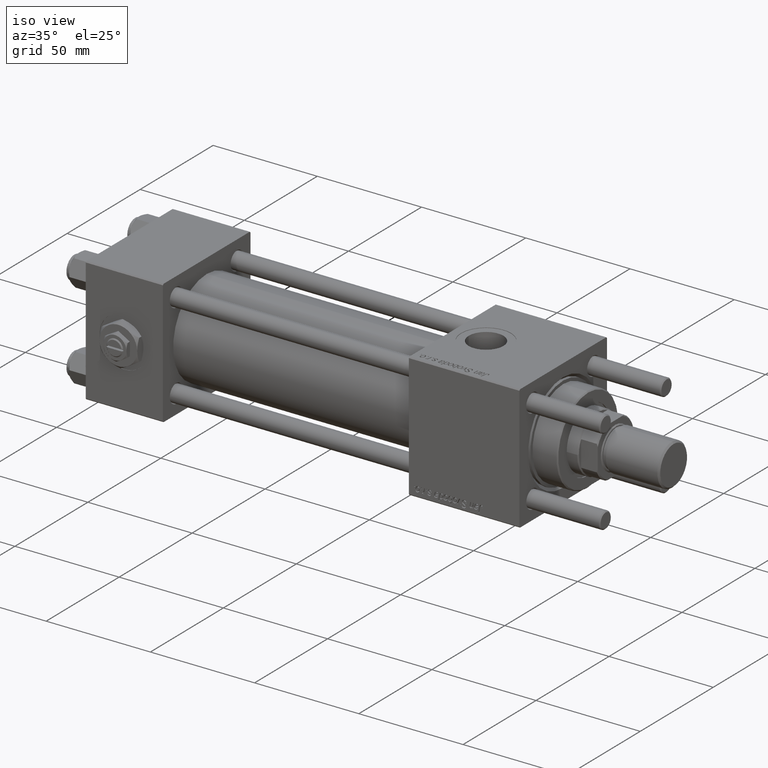
[diagram: clean part render]
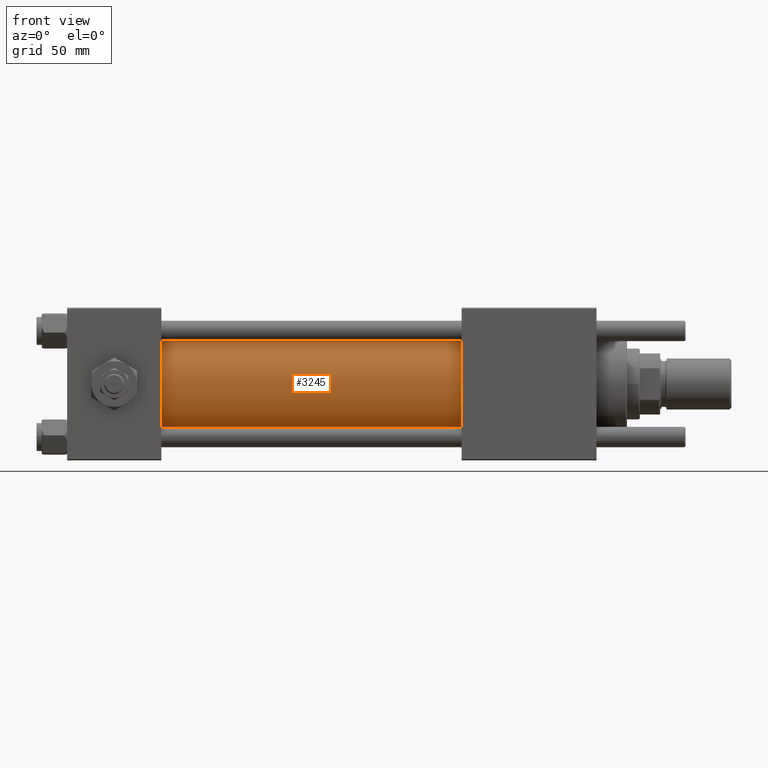
[diagram: tour spotlight — one face highlighted and labeled with its STEP entity id]
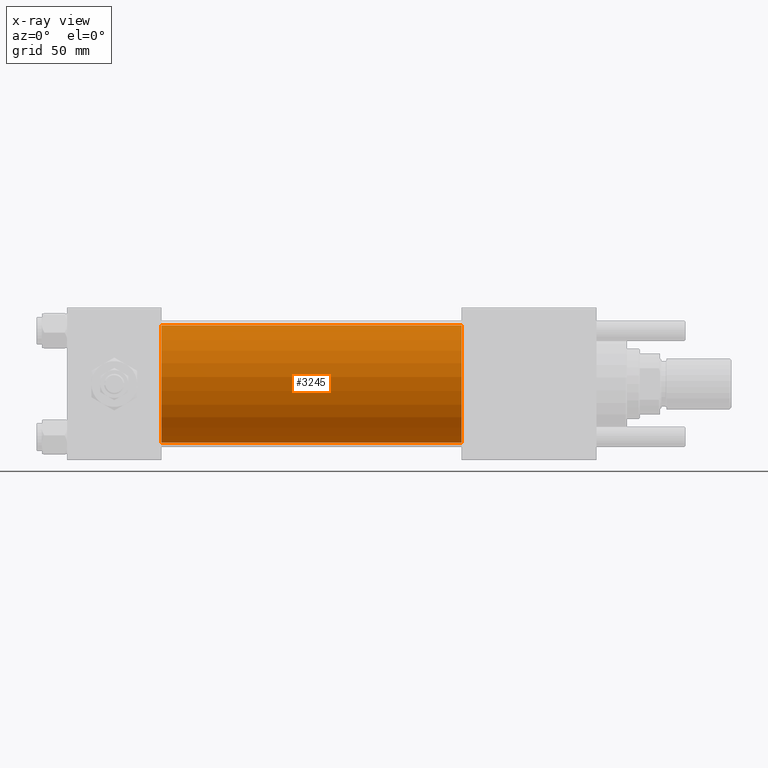
[diagram: x-ray of the same camera — body ghosted, this tour face saturated]
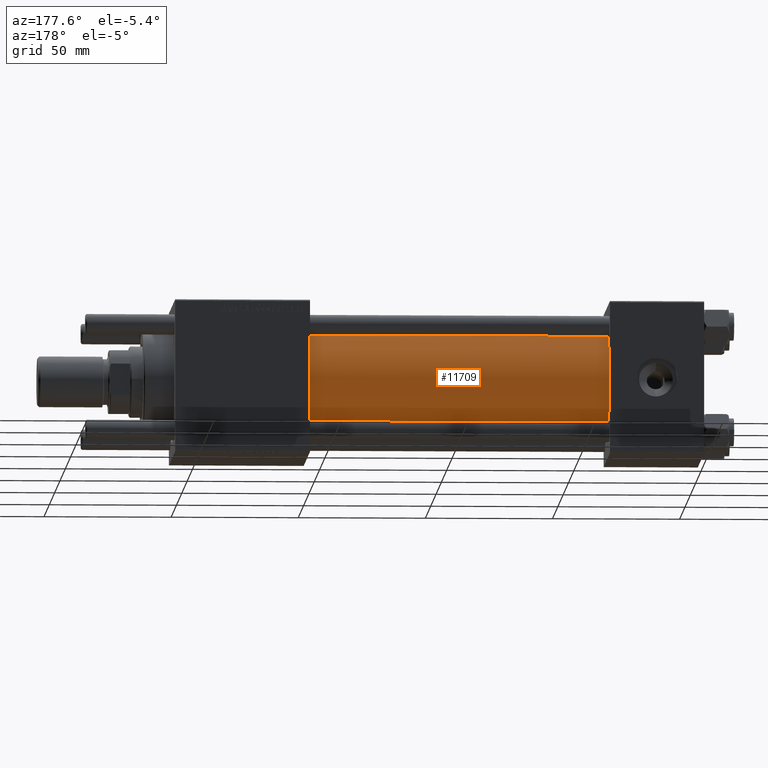
[diagram: tour spotlight — one face highlighted and labeled with its STEP entity id]
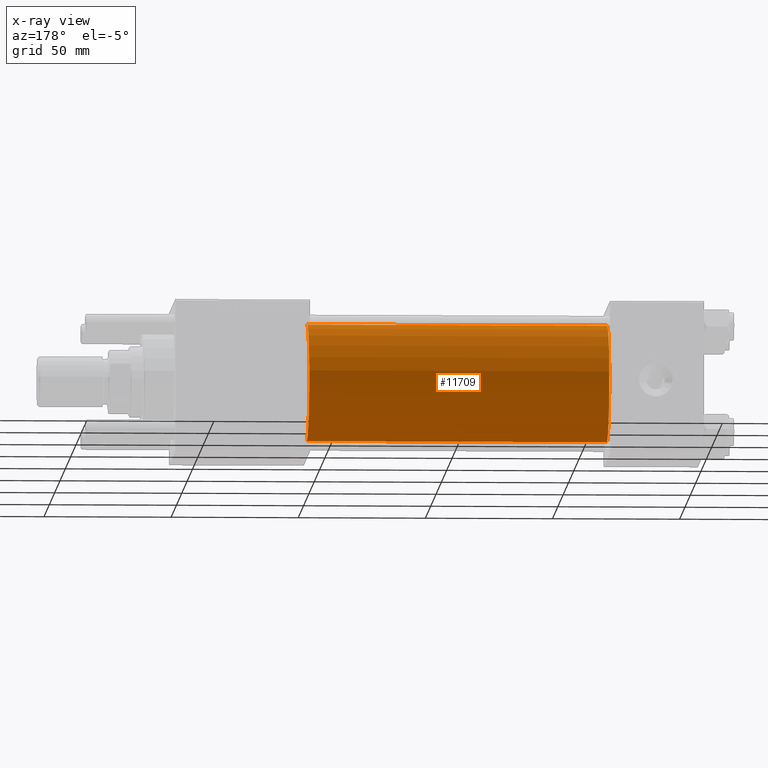
[diagram: x-ray of the same camera — body ghosted, this tour face saturated]
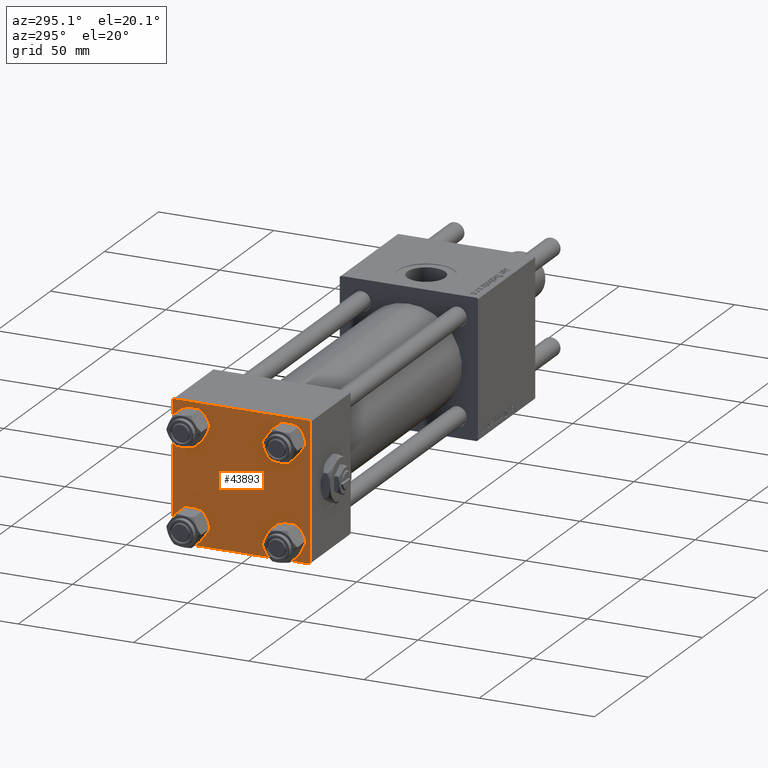
[diagram: tour spotlight — one face highlighted and labeled with its STEP entity id]
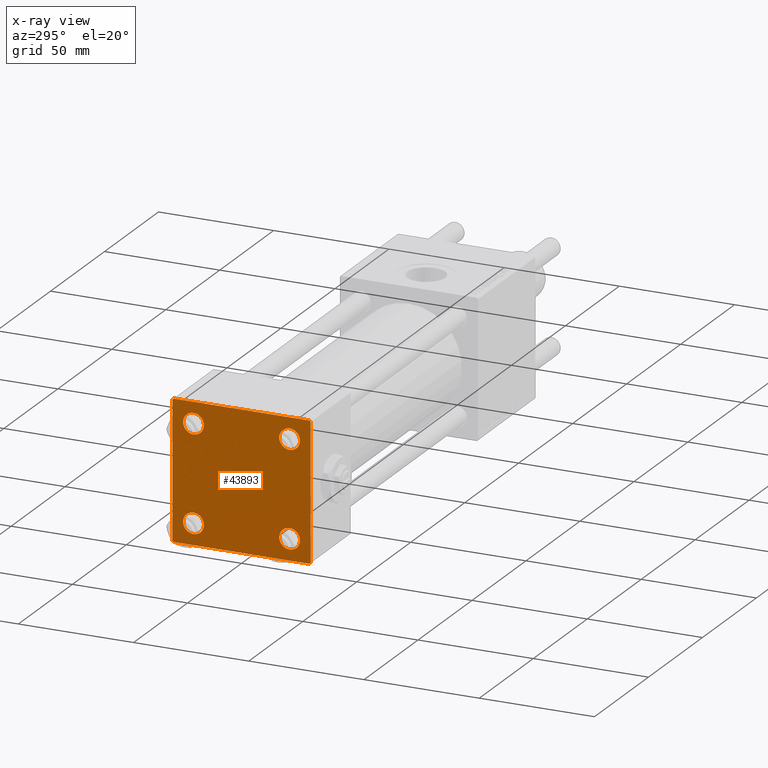
[diagram: x-ray of the same camera — body ghosted, this tour face saturated]
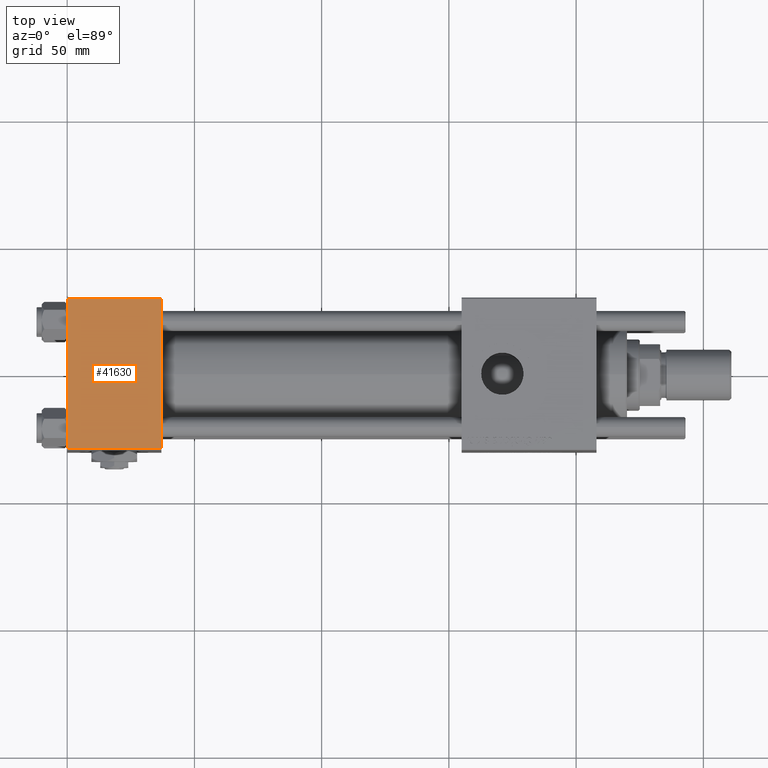
[diagram: tour spotlight — one face highlighted and labeled with its STEP entity id]
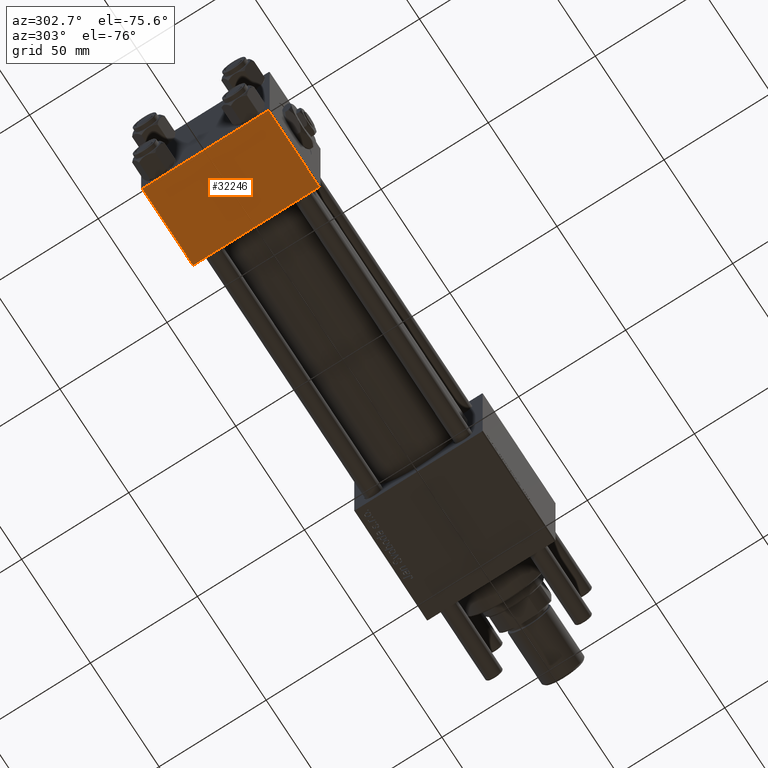
[diagram: tour spotlight — one face highlighted and labeled with its STEP entity id]
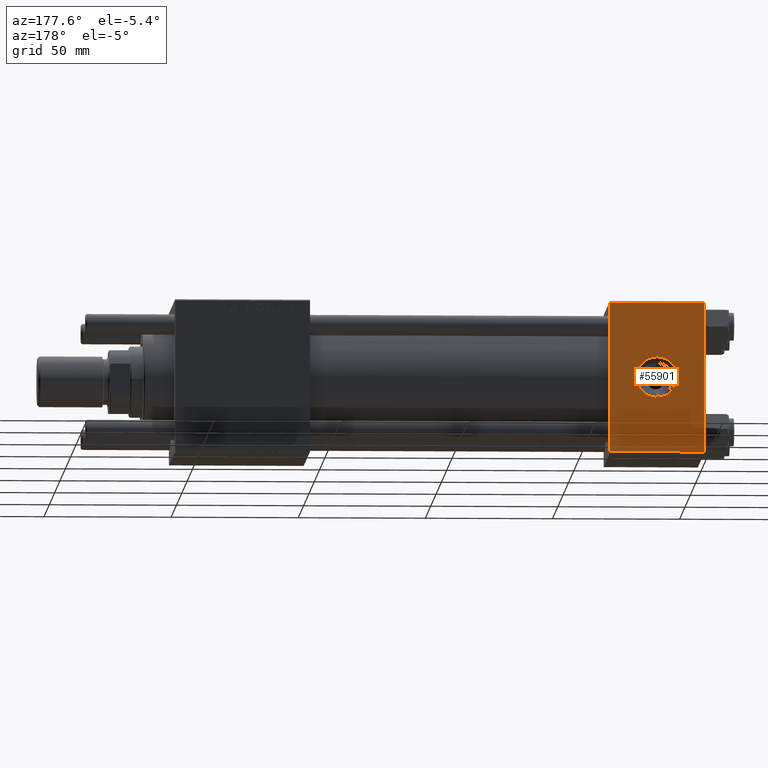
[diagram: tour spotlight — one face highlighted and labeled with its STEP entity id]
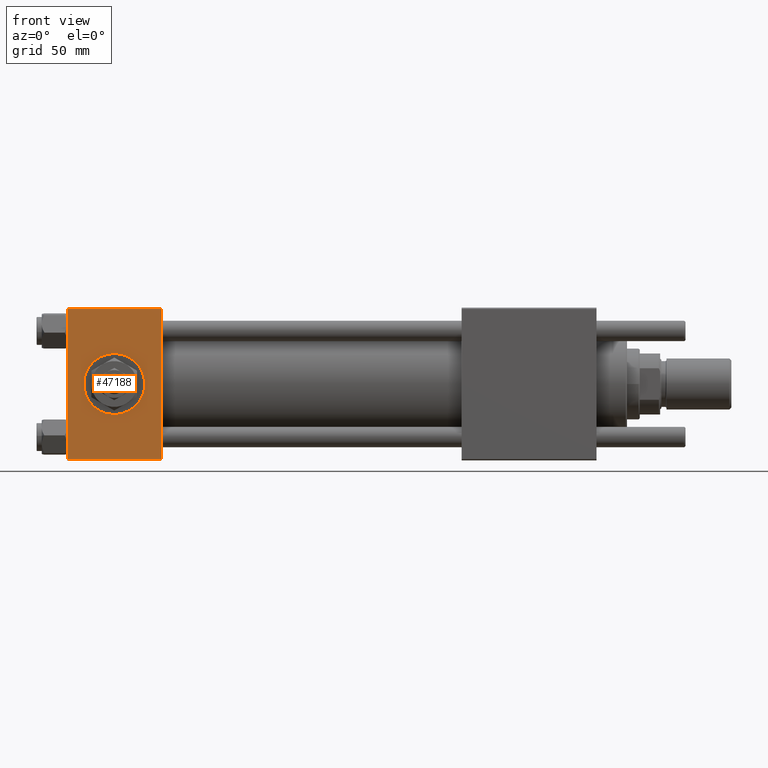
[diagram: tour spotlight — one face highlighted and labeled with its STEP entity id]
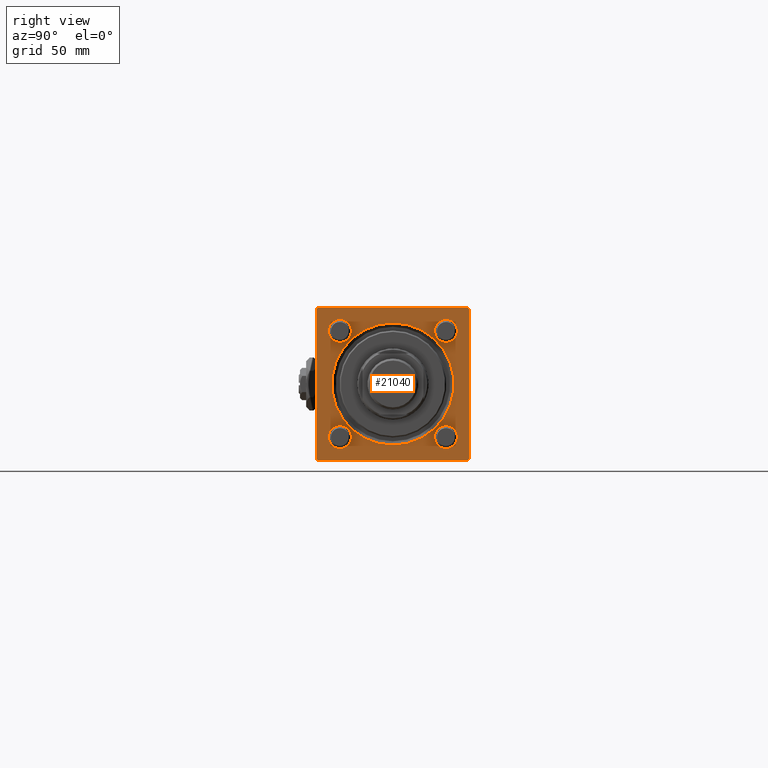
[diagram: tour spotlight — one face highlighted and labeled with its STEP entity id]
A machine part: a face-by-face anatomy tour. The part has 1226 B-rep faces; the first image is the clean iso view, then the 8 largest visible faces are spotlighted one at a time (largest first), each with its STEP entity span.

Face 1 — front view, entity #3245. An x-ray twin of the same camera follows (body ghosted, this face saturated) — the face is partly hidden behind the body. In plain terms, the highlighted cylindrical surface (partial cylindrical patch) has radius 23 mm, axis along (-1, -0, -0).
Definition (entity closure, byte-faithful):
#41 = CARTESIAN_POINT ( 'NONE',  ( 37.00000000000000711, -2.602085213965210642E-15, 0.000000000000000000 ) ) ;
#670 = EDGE_CURVE ( 'NONE', #18494, #18833, #3389, .T. ) ;
#1875 = EDGE_CURVE ( 'NONE', #21756, #31566, #30127, .T. ) ;
#1958 = VECTOR ( 'NONE', #48756, 1000.000000000000000 ) ;
#2983 = DIRECTION ( 'NONE',  ( 1.000000000000000000, 0.000000000000000000, 0.000000000000000000 ) ) ;
#3245 = ADVANCED_FACE ( 'NONE', ( #46354 ), #42179, .T. ) ;
#3389 = CIRCLE ( 'NONE', #35780, 23.00000000000000000 ) ;
#3931 = DIRECTION ( 'NONE',  ( 1.000000000000000000, -0.000000000000000000, 0.000000000000000000 ) ) ;
#4644 = VECTOR ( 'NONE', #49168, 1000.000000000000000 ) ;
#4718 = CARTESIAN_POINT ( 'NONE',  ( 37.00000000000000711, 2.146024240737016609E-16, -23.00000000000000000 ) ) ;
#14888 = AXIS2_PLACEMENT_3D ( 'NONE', #38805, #2983, #34897 ) ;
#15615 = DIRECTION ( 'NONE',  ( -1.000000000000000000, -0.000000000000000000, -0.000000000000000000 ) ) ;
#16081 = CARTESIAN_POINT ( 'NONE',  ( 155.0000000000000000, 2.146024240737016609E-16, -23.00000000000000000 ) ) ;
#18494 = VERTEX_POINT ( 'NONE', #52054 ) ;
#18534 = EDGE_CURVE ( 'NONE', #21756, #18494, #35020, .T. ) ;
#18833 = VERTEX_POINT ( 'NONE', #4718 ) ;
#20592 = ORIENTED_EDGE ( 'NONE', *, *, #44179, .F. ) ;
#21756 = VERTEX_POINT ( 'NONE', #23615 ) ;
#23615 = CARTESIAN_POINT ( 'NONE',  ( 155.0000000000000000, -2.602085213965210642E-15, 23.00000000000000000 ) ) ;
#23999 = DIRECTION ( 'NONE',  ( 0.000000000000000000, 0.000000000000000000, 1.000000000000000000 ) ) ;
#28528 = ORIENTED_EDGE ( 'NONE', *, *, #1875, .F. ) ;
#29696 = CARTESIAN_POINT ( 'NONE',  ( 155.0000000000000000, -2.602085213965210642E-15, 23.00000000000000000 ) ) ;
#30127 = CIRCLE ( 'NONE', #14888, 23.00000000000000000 ) ;
#31497 = EDGE_LOOP ( 'NONE', ( #20592, #28528, #40479, #43588 ) ) ;
#31566 = VERTEX_POINT ( 'NONE', #16081 ) ;
#34897 = DIRECTION ( 'NONE',  ( 0.000000000000000000, 0.000000000000000000, -1.000000000000000000 ) ) ;
#35020 = LINE ( 'NONE', #29696, #1958 ) ;
#35780 = AXIS2_PLACEMENT_3D ( 'NONE', #41, #3931, #45401 ) ;
#38805 = CARTESIAN_POINT ( 'NONE',  ( 155.0000000000000000, -2.602085213965210642E-15, 0.000000000000000000 ) ) ;
#40479 = ORIENTED_EDGE ( 'NONE', *, *, #18534, .T. ) ;
#42179 = CYLINDRICAL_SURFACE ( 'NONE', #54950, 23.00000000000000000 ) ;
#43588 = ORIENTED_EDGE ( 'NONE', *, *, #670, .T. ) ;
#44115 = LINE ( 'NONE', #57839, #4644 ) ;
#44179 = EDGE_CURVE ( 'NONE', #31566, #18833, #44115, .T. ) ;
#45401 = DIRECTION ( 'NONE',  ( 0.000000000000000000, 0.000000000000000000, 1.000000000000000000 ) ) ;
#46354 = FACE_OUTER_BOUND ( 'NONE', #31497, .T. ) ;
#48756 = DIRECTION ( 'NONE',  ( -1.000000000000000000, -0.000000000000000000, -0.000000000000000000 ) ) ;
#49168 = DIRECTION ( 'NONE',  ( -1.000000000000000000, -0.000000000000000000, -0.000000000000000000 ) ) ;
#50820 = CARTESIAN_POINT ( 'NONE',  ( 155.0000000000000000, -2.602085213965210642E-15, 0.000000000000000000 ) ) ;
#52054 = CARTESIAN_POINT ( 'NONE',  ( 37.00000000000000711, -2.602085213965210642E-15, 23.00000000000000000 ) ) ;
#54950 = AXIS2_PLACEMENT_3D ( 'NONE', #50820, #15615, #23999 ) ;
#57839 = CARTESIAN_POINT ( 'NONE',  ( 155.0000000000000000, 2.146024240737016609E-16, -23.00000000000000000 ) ) ;

Face 2 — auxiliary view, entity #11709. An x-ray twin of the same camera follows (body ghosted, this face saturated) — the face is partly hidden behind the body. In plain terms, the highlighted cylindrical surface (partial cylindrical patch) has radius 23 mm, axis along (-1, -0, -0).
Definition (entity closure, byte-faithful):
#970 = DIRECTION ( 'NONE',  ( 0.000000000000000000, 0.000000000000000000, 1.000000000000000000 ) ) ;
#1958 = VECTOR ( 'NONE', #48756, 1000.000000000000000 ) ;
#2816 = CYLINDRICAL_SURFACE ( 'NONE', #55058, 23.00000000000000000 ) ;
#4644 = VECTOR ( 'NONE', #49168, 1000.000000000000000 ) ;
#4718 = CARTESIAN_POINT ( 'NONE',  ( 37.00000000000000711, 2.146024240737016609E-16, -23.00000000000000000 ) ) ;
#5298 = AXIS2_PLACEMENT_3D ( 'NONE', #41849, #24263, #970 ) ;
#11709 = ADVANCED_FACE ( 'NONE', ( #33579 ), #2816, .T. ) ;
#13396 = ORIENTED_EDGE ( 'NONE', *, *, #27292, .T. ) ;
#16081 = CARTESIAN_POINT ( 'NONE',  ( 155.0000000000000000, 2.146024240737016609E-16, -23.00000000000000000 ) ) ;
#18494 = VERTEX_POINT ( 'NONE', #52054 ) ;
#18534 = EDGE_CURVE ( 'NONE', #21756, #18494, #35020, .T. ) ;
#18833 = VERTEX_POINT ( 'NONE', #4718 ) ;
#19203 = EDGE_CURVE ( 'NONE', #31566, #21756, #30541, .T. ) ;
#21756 = VERTEX_POINT ( 'NONE', #23615 ) ;
#23180 = CARTESIAN_POINT ( 'NONE',  ( 155.0000000000000000, -2.602085213965210642E-15, 0.000000000000000000 ) ) ;
#23615 = CARTESIAN_POINT ( 'NONE',  ( 155.0000000000000000, -2.602085213965210642E-15, 23.00000000000000000 ) ) ;
#24263 = DIRECTION ( 'NONE',  ( 1.000000000000000000, -0.000000000000000000, 0.000000000000000000 ) ) ;
#27292 = EDGE_CURVE ( 'NONE', #18833, #18494, #52973, .T. ) ;
#28835 = DIRECTION ( 'NONE',  ( 0.000000000000000000, 0.000000000000000000, 1.000000000000000000 ) ) ;
#29696 = CARTESIAN_POINT ( 'NONE',  ( 155.0000000000000000, -2.602085213965210642E-15, 23.00000000000000000 ) ) ;
#30541 = CIRCLE ( 'NONE', #45785, 23.00000000000000000 ) ;
#31566 = VERTEX_POINT ( 'NONE', #16081 ) ;
#32124 = ORIENTED_EDGE ( 'NONE', *, *, #19203, .F. ) ;
#33579 = FACE_OUTER_BOUND ( 'NONE', #44246, .T. ) ;
#35020 = LINE ( 'NONE', #29696, #1958 ) ;
#38359 = CARTESIAN_POINT ( 'NONE',  ( 155.0000000000000000, -2.602085213965210642E-15, 0.000000000000000000 ) ) ;
#41356 = DIRECTION ( 'NONE',  ( 0.000000000000000000, 0.000000000000000000, -1.000000000000000000 ) ) ;
#41849 = CARTESIAN_POINT ( 'NONE',  ( 37.00000000000000711, -2.602085213965210642E-15, 0.000000000000000000 ) ) ;
#43170 = ORIENTED_EDGE ( 'NONE', *, *, #44179, .T. ) ;
#44115 = LINE ( 'NONE', #57839, #4644 ) ;
#44179 = EDGE_CURVE ( 'NONE', #31566, #18833, #44115, .T. ) ;
#44246 = EDGE_LOOP ( 'NONE', ( #32124, #43170, #13396, #52179 ) ) ;
#45785 = AXIS2_PLACEMENT_3D ( 'NONE', #23180, #58977, #41356 ) ;
#48756 = DIRECTION ( 'NONE',  ( -1.000000000000000000, -0.000000000000000000, -0.000000000000000000 ) ) ;
#49168 = DIRECTION ( 'NONE',  ( -1.000000000000000000, -0.000000000000000000, -0.000000000000000000 ) ) ;
#52054 = CARTESIAN_POINT ( 'NONE',  ( 37.00000000000000711, -2.602085213965210642E-15, 23.00000000000000000 ) ) ;
#52179 = ORIENTED_EDGE ( 'NONE', *, *, #18534, .F. ) ;
#52973 = CIRCLE ( 'NONE', #5298, 23.00000000000000000 ) ;
#55058 = AXIS2_PLACEMENT_3D ( 'NONE', #38359, #56546, #28835 ) ;
#56546 = DIRECTION ( 'NONE',  ( -1.000000000000000000, -0.000000000000000000, -0.000000000000000000 ) ) ;
#57839 = CARTESIAN_POINT ( 'NONE',  ( 155.0000000000000000, 2.146024240737016609E-16, -23.00000000000000000 ) ) ;
#58977 = DIRECTION ( 'NONE',  ( 1.000000000000000000, 0.000000000000000000, 0.000000000000000000 ) ) ;

Face 3 — auxiliary view, entity #43893. An x-ray twin of the same camera follows (body ghosted, this face saturated) — the face is partly hidden behind the body. In plain terms, the highlighted planar face has unit normal (-1, 0, 0).
Definition (entity closure, byte-faithful):
#579 = FACE_BOUND ( 'NONE', #52391, .T. ) ;
#883 = FACE_BOUND ( 'NONE', #34056, .T. ) ;
#1566 = CARTESIAN_POINT ( 'NONE',  ( 0.000000000000000000, -29.75000000000001066, -29.75000000000001066 ) ) ;
#1578 = CIRCLE ( 'NONE', #22557, 4.500000000000017764 ) ;
#1859 = LINE ( 'NONE', #1566, #46630 ) ;
#1980 = CIRCLE ( 'NONE', #33420, 4.500000000000017764 ) ;
#2153 = CARTESIAN_POINT ( 'NONE',  ( 0.000000000000000000, -30.00000000000000000, 29.99999999999999289 ) ) ;
#2197 = CARTESIAN_POINT ( 'NONE',  ( 0.000000000000000000, 20.84999999999999787, -20.85000000000000142 ) ) ;
#2347 = CARTESIAN_POINT ( 'NONE',  ( 0.000000000000000000, 29.99999999999999289, -30.00000000000000000 ) ) ;
#2631 = EDGE_CURVE ( 'NONE', #16757, #19684, #1578, .T. ) ;
#2746 = AXIS2_PLACEMENT_3D ( 'NONE', #20626, #44156, #56425 ) ;
#2843 = LINE ( 'NONE', #3416, #33034 ) ;
#2866 = VERTEX_POINT ( 'NONE', #14319 ) ;
#3007 = ORIENTED_EDGE ( 'NONE', *, *, #44032, .T. ) ;
#3229 = VERTEX_POINT ( 'NONE', #18914 ) ;
#3416 = CARTESIAN_POINT ( 'NONE',  ( -0.000000000000000000, -29.74999999999999645, 29.74999999999999645 ) ) ;
#3471 = CARTESIAN_POINT ( 'NONE',  ( 0.000000000000000000, -20.84999999999999076, -20.85000000000000497 ) ) ;
#3686 = VECTOR ( 'NONE', #36668, 1000.000000000000000 ) ;
#3938 = AXIS2_PLACEMENT_3D ( 'NONE', #31522, #49113, #22581 ) ;
#5210 = LINE ( 'NONE', #10295, #20859 ) ;
#5758 = DIRECTION ( 'NONE',  ( 0.000000000000000000, -0.7071067811865474617, 0.7071067811865474617 ) ) ;
#5789 = CARTESIAN_POINT ( 'NONE',  ( 0.000000000000000000, -20.84999999999999076, 25.35000000000002274 ) ) ;
#6134 = VERTEX_POINT ( 'NONE', #58178 ) ;
#7653 = VECTOR ( 'NONE', #42943, 1000.000000000000000 ) ;
#8218 = ORIENTED_EDGE ( 'NONE', *, *, #56786, .T. ) ;
#8486 = VECTOR ( 'NONE', #15596, 1000.000000000000000 ) ;
#8750 = VERTEX_POINT ( 'NONE', #16900 ) ;
#8931 = EDGE_CURVE ( 'NONE', #10440, #35327, #5210, .T. ) ;
#9353 = EDGE_CURVE ( 'NONE', #44205, #2866, #29320, .T. ) ;
#10295 = CARTESIAN_POINT ( 'NONE',  ( 0.000000000000000000, 29.74999999999999645, 29.74999999999999645 ) ) ;
#10366 = DIRECTION ( 'NONE',  ( 0.000000000000000000, 0.000000000000000000, -1.000000000000000000 ) ) ;
#10440 = VERTEX_POINT ( 'NONE', #25008 ) ;
#11220 = ORIENTED_EDGE ( 'NONE', *, *, #45736, .T. ) ;
#11313 = CIRCLE ( 'NONE', #2746, 4.500000000000017764 ) ;
#11770 = VERTEX_POINT ( 'NONE', #54126 ) ;
#11834 = VECTOR ( 'NONE', #28233, 999.9999999999998863 ) ;
#13729 = DIRECTION ( 'NONE',  ( 1.000000000000000000, -0.000000000000000000, 0.000000000000000000 ) ) ;
#13804 = VERTEX_POINT ( 'NONE', #49001 ) ;
#14319 = CARTESIAN_POINT ( 'NONE',  ( 0.000000000000000000, -30.00000000000000000, -29.50000000000001776 ) ) ;
#14418 = CIRCLE ( 'NONE', #38219, 4.500000000000017764 ) ;
#14855 = LINE ( 'NONE', #33031, #17163 ) ;
#14858 = ORIENTED_EDGE ( 'NONE', *, *, #33469, .T. ) ;
#15258 = DIRECTION ( 'NONE',  ( 1.000000000000000000, -0.000000000000000000, 0.000000000000000000 ) ) ;
#15596 = DIRECTION ( 'NONE',  ( 0.000000000000000000, 0.000000000000000000, -1.000000000000000000 ) ) ;
#15742 = VERTEX_POINT ( 'NONE', #35301 ) ;
#16757 = VERTEX_POINT ( 'NONE', #18313 ) ;
#16900 = CARTESIAN_POINT ( 'NONE',  ( 0.000000000000000000, -29.50000000000000000, -30.00000000000000711 ) ) ;
#17163 = VECTOR ( 'NONE', #10366, 1000.000000000000000 ) ;
#18313 = CARTESIAN_POINT ( 'NONE',  ( 0.000000000000000000, -20.84999999999999076, -25.35000000000002274 ) ) ;
#18504 = ORIENTED_EDGE ( 'NONE', *, *, #58374, .F. ) ;
#18914 = CARTESIAN_POINT ( 'NONE',  ( 0.000000000000000000, 20.84999999999999787, -25.35000000000001918 ) ) ;
#19684 = VERTEX_POINT ( 'NONE', #46101 ) ;
#19872 = AXIS2_PLACEMENT_3D ( 'NONE', #3471, #35704, #21719 ) ;
#20581 = EDGE_CURVE ( 'NONE', #6134, #15742, #14418, .T. ) ;
#20626 = CARTESIAN_POINT ( 'NONE',  ( 0.000000000000000000, 20.84999999999999787, 20.85000000000000142 ) ) ;
#20859 = VECTOR ( 'NONE', #23445, 1000.000000000000114 ) ;
#21719 = DIRECTION ( 'NONE',  ( 0.000000000000000000, 0.000000000000000000, 1.000000000000000000 ) ) ;
#22557 = AXIS2_PLACEMENT_3D ( 'NONE', #34027, #42701, #41821 ) ;
#22581 = DIRECTION ( 'NONE',  ( 0.000000000000000000, 0.000000000000000000, 1.000000000000000000 ) ) ;
#22587 = EDGE_CURVE ( 'NONE', #24774, #13804, #22885, .T. ) ;
#22885 = LINE ( 'NONE', #27940, #11834 ) ;
#23286 = DIRECTION ( 'NONE',  ( -1.000000000000000000, 0.000000000000000000, -0.000000000000000000 ) ) ;
#23445 = DIRECTION ( 'NONE',  ( 0.000000000000000000, 0.7071067811865474617, -0.7071067811865474617 ) ) ;
#24108 = CARTESIAN_POINT ( 'NONE',  ( 0.000000000000000000, -30.00000000000000000, 29.49999999999999289 ) ) ;
#24774 = VERTEX_POINT ( 'NONE', #43409 ) ;
#25008 = CARTESIAN_POINT ( 'NONE',  ( 0.000000000000000000, 29.49999999999999289, 30.00000000000000000 ) ) ;
#25483 = ORIENTED_EDGE ( 'NONE', *, *, #52483, .T. ) ;
#26137 = ORIENTED_EDGE ( 'NONE', *, *, #43304, .T. ) ;
#26413 = DIRECTION ( 'NONE',  ( -0.000000000000000000, 0.7071067811865474617, 0.7071067811865474617 ) ) ;
#27394 = ORIENTED_EDGE ( 'NONE', *, *, #20581, .T. ) ;
#27772 = DIRECTION ( 'NONE',  ( -0.000000000000000000, 0.000000000000000000, 1.000000000000000000 ) ) ;
#27918 = ORIENTED_EDGE ( 'NONE', *, *, #41215, .T. ) ;
#27940 = CARTESIAN_POINT ( 'NONE',  ( 0.000000000000000000, 29.74999999999957723, -29.75000000000040501 ) ) ;
#28233 = DIRECTION ( 'NONE',  ( -0.000000000000000000, -0.7071067811865574537, -0.7071067811865376918 ) ) ;
#28482 = CIRCLE ( 'NONE', #19872, 4.500000000000017764 ) ;
#28691 = DIRECTION ( 'NONE',  ( 0.000000000000000000, 0.000000000000000000, 1.000000000000000000 ) ) ;
#29021 = VERTEX_POINT ( 'NONE', #36289 ) ;
#29320 = LINE ( 'NONE', #2153, #8486 ) ;
#29521 = AXIS2_PLACEMENT_3D ( 'NONE', #40578, #13729, #58776 ) ;
#31522 = CARTESIAN_POINT ( 'NONE',  ( 0.000000000000000000, -20.84999999999999076, 20.85000000000000497 ) ) ;
#32113 = VERTEX_POINT ( 'NONE', #51086 ) ;
#32772 = CARTESIAN_POINT ( 'NONE',  ( 0.000000000000000000, 29.99999999999999289, 30.00000000000000000 ) ) ;
#33031 = CARTESIAN_POINT ( 'NONE',  ( 0.000000000000000000, 29.99999999999999289, 30.00000000000000000 ) ) ;
#33034 = VECTOR ( 'NONE', #26413, 1000.000000000000114 ) ;
#33078 = LINE ( 'NONE', #32772, #3686 ) ;
#33407 = PLANE ( 'NONE',  #49559 ) ;
#33420 = AXIS2_PLACEMENT_3D ( 'NONE', #2197, #57389, #56508 ) ;
#33469 = EDGE_CURVE ( 'NONE', #44205, #11770, #2843, .T. ) ;
#34027 = CARTESIAN_POINT ( 'NONE',  ( 0.000000000000000000, -20.84999999999999076, -20.85000000000000497 ) ) ;
#34056 = EDGE_LOOP ( 'NONE', ( #27394, #58711 ) ) ;
#34776 = ORIENTED_EDGE ( 'NONE', *, *, #22587, .T. ) ;
#35301 = CARTESIAN_POINT ( 'NONE',  ( 0.000000000000000000, 20.84999999999999787, 16.34999999999998366 ) ) ;
#35327 = VERTEX_POINT ( 'NONE', #37230 ) ;
#35704 = DIRECTION ( 'NONE',  ( 1.000000000000000000, -0.000000000000000000, 0.000000000000000000 ) ) ;
#36145 = ORIENTED_EDGE ( 'NONE', *, *, #8931, .T. ) ;
#36289 = CARTESIAN_POINT ( 'NONE',  ( 0.000000000000000000, 20.84999999999999787, -16.34999999999998366 ) ) ;
#36668 = DIRECTION ( 'NONE',  ( 0.000000000000000000, -1.000000000000000000, -1.156482317317871725E-16 ) ) ;
#37230 = CARTESIAN_POINT ( 'NONE',  ( 0.000000000000000000, 29.99999999999999289, 29.50000000000000000 ) ) ;
#37887 = FACE_BOUND ( 'NONE', #51891, .T. ) ;
#38219 = AXIS2_PLACEMENT_3D ( 'NONE', #45815, #42518, #55945 ) ;
#38696 = ORIENTED_EDGE ( 'NONE', *, *, #2631, .T. ) ;
#40149 = EDGE_CURVE ( 'NONE', #15742, #6134, #11313, .T. ) ;
#40154 = CIRCLE ( 'NONE', #3938, 4.500000000000017764 ) ;
#40578 = CARTESIAN_POINT ( 'NONE',  ( 0.000000000000000000, 20.84999999999999787, -20.85000000000000142 ) ) ;
#41215 = EDGE_CURVE ( 'NONE', #3229, #29021, #49472, .T. ) ;
#41821 = DIRECTION ( 'NONE',  ( 0.000000000000000000, 0.000000000000000000, 1.000000000000000000 ) ) ;
#42385 = CARTESIAN_POINT ( 'NONE',  ( 0.000000000000000000, -20.84999999999999076, 20.85000000000000497 ) ) ;
#42518 = DIRECTION ( 'NONE',  ( 1.000000000000000000, -0.000000000000000000, 0.000000000000000000 ) ) ;
#42701 = DIRECTION ( 'NONE',  ( 1.000000000000000000, -0.000000000000000000, 0.000000000000000000 ) ) ;
#42943 = DIRECTION ( 'NONE',  ( 0.000000000000000000, -1.000000000000000000, -1.156482317317871725E-16 ) ) ;
#43223 = LINE ( 'NONE', #2347, #7653 ) ;
#43304 = EDGE_CURVE ( 'NONE', #35327, #24774, #14855, .T. ) ;
#43409 = CARTESIAN_POINT ( 'NONE',  ( 0.000000000000000000, 29.99999999999999289, -29.50000000000000000 ) ) ;
#43893 = ADVANCED_FACE ( 'NONE', ( #579, #54898, #37887, #883, #51306 ), #33407, .T. ) ;
#44032 = EDGE_CURVE ( 'NONE', #13804, #8750, #43223, .T. ) ;
#44093 = ORIENTED_EDGE ( 'NONE', *, *, #56530, .T. ) ;
#44156 = DIRECTION ( 'NONE',  ( 1.000000000000000000, -0.000000000000000000, 0.000000000000000000 ) ) ;
#44205 = VERTEX_POINT ( 'NONE', #24108 ) ;
#45574 = CIRCLE ( 'NONE', #51281, 4.500000000000017764 ) ;
#45736 = EDGE_CURVE ( 'NONE', #8750, #2866, #1859, .T. ) ;
#45815 = CARTESIAN_POINT ( 'NONE',  ( 0.000000000000000000, 20.84999999999999787, 20.85000000000000142 ) ) ;
#46101 = CARTESIAN_POINT ( 'NONE',  ( 0.000000000000000000, -20.84999999999999076, -16.34999999999998721 ) ) ;
#46630 = VECTOR ( 'NONE', #5758, 1000.000000000000114 ) ;
#49001 = CARTESIAN_POINT ( 'NONE',  ( 0.000000000000000000, 29.49999999999997868, -30.00000000000000000 ) ) ;
#49113 = DIRECTION ( 'NONE',  ( 1.000000000000000000, -0.000000000000000000, 0.000000000000000000 ) ) ;
#49174 = EDGE_CURVE ( 'NONE', #29021, #3229, #1980, .T. ) ;
#49472 = CIRCLE ( 'NONE', #29521, 4.500000000000017764 ) ;
#49559 = AXIS2_PLACEMENT_3D ( 'NONE', #50713, #23286, #27772 ) ;
#49689 = ORIENTED_EDGE ( 'NONE', *, *, #49174, .T. ) ;
#49991 = ORIENTED_EDGE ( 'NONE', *, *, #9353, .F. ) ;
#50713 = CARTESIAN_POINT ( 'NONE',  ( 0.000000000000000000, 0.000000000000000000, 0.000000000000000000 ) ) ;
#51086 = CARTESIAN_POINT ( 'NONE',  ( 0.000000000000000000, -20.84999999999999076, 16.34999999999998721 ) ) ;
#51281 = AXIS2_PLACEMENT_3D ( 'NONE', #42385, #15258, #28691 ) ;
#51306 = FACE_OUTER_BOUND ( 'NONE', #55490, .T. ) ;
#51891 = EDGE_LOOP ( 'NONE', ( #49689, #27918 ) ) ;
#52391 = EDGE_LOOP ( 'NONE', ( #25483, #44093 ) ) ;
#52483 = EDGE_CURVE ( 'NONE', #58088, #32113, #40154, .T. ) ;
#54126 = CARTESIAN_POINT ( 'NONE',  ( 0.000000000000000000, -29.49999999999998579, 29.99999999999999289 ) ) ;
#54802 = EDGE_LOOP ( 'NONE', ( #8218, #38696 ) ) ;
#54898 = FACE_BOUND ( 'NONE', #54802, .T. ) ;
#55490 = EDGE_LOOP ( 'NONE', ( #26137, #34776, #3007, #11220, #49991, #14858, #18504, #36145 ) ) ;
#55945 = DIRECTION ( 'NONE',  ( 0.000000000000000000, 0.000000000000000000, 1.000000000000000000 ) ) ;
#56425 = DIRECTION ( 'NONE',  ( 0.000000000000000000, 0.000000000000000000, 1.000000000000000000 ) ) ;
#56508 = DIRECTION ( 'NONE',  ( 0.000000000000000000, 0.000000000000000000, 1.000000000000000000 ) ) ;
#56530 = EDGE_CURVE ( 'NONE', #32113, #58088, #45574, .T. ) ;
#56786 = EDGE_CURVE ( 'NONE', #19684, #16757, #28482, .T. ) ;
#57389 = DIRECTION ( 'NONE',  ( 1.000000000000000000, -0.000000000000000000, 0.000000000000000000 ) ) ;
#58088 = VERTEX_POINT ( 'NONE', #5789 ) ;
#58178 = CARTESIAN_POINT ( 'NONE',  ( 0.000000000000000000, 20.84999999999999787, 25.35000000000001918 ) ) ;
#58374 = EDGE_CURVE ( 'NONE', #10440, #11770, #33078, .T. ) ;
#58711 = ORIENTED_EDGE ( 'NONE', *, *, #40149, .T. ) ;
#58776 = DIRECTION ( 'NONE',  ( 0.000000000000000000, 0.000000000000000000, 1.000000000000000000 ) ) ;

Face 4 — top view, entity #41630. In plain terms, the highlighted planar face has unit normal (0, 0, -1).
Definition (entity closure, byte-faithful):
#2494 = ORIENTED_EDGE ( 'NONE', *, *, #58374, .T. ) ;
#3240 = CARTESIAN_POINT ( 'NONE',  ( 37.00000000000000000, 29.49999999999999289, 30.00000000000000000 ) ) ;
#3686 = VECTOR ( 'NONE', #36668, 1000.000000000000000 ) ;
#3734 = VECTOR ( 'NONE', #10039, 1000.000000000000000 ) ;
#7116 = VERTEX_POINT ( 'NONE', #29502 ) ;
#7232 = EDGE_CURVE ( 'NONE', #46103, #7116, #49138, .T. ) ;
#7566 = AXIS2_PLACEMENT_3D ( 'NONE', #57826, #35140, #40794 ) ;
#8880 = FACE_OUTER_BOUND ( 'NONE', #43744, .T. ) ;
#10039 = DIRECTION ( 'NONE',  ( 1.000000000000000000, 0.000000000000000000, 0.000000000000000000 ) ) ;
#10303 = LINE ( 'NONE', #32374, #46801 ) ;
#10440 = VERTEX_POINT ( 'NONE', #25008 ) ;
#11770 = VERTEX_POINT ( 'NONE', #54126 ) ;
#13941 = CARTESIAN_POINT ( 'NONE',  ( 37.00000000000000000, -29.50000000000000000, 29.99999999999999289 ) ) ;
#19864 = DIRECTION ( 'NONE',  ( -1.000000000000000000, 0.000000000000000000, 0.000000000000000000 ) ) ;
#24766 = ORIENTED_EDGE ( 'NONE', *, *, #51654, .T. ) ;
#25008 = CARTESIAN_POINT ( 'NONE',  ( 0.000000000000000000, 29.49999999999999289, 30.00000000000000000 ) ) ;
#27087 = PLANE ( 'NONE',  #7566 ) ;
#29502 = CARTESIAN_POINT ( 'NONE',  ( 37.00000000000000000, -29.49999999999998579, 29.99999999999999289 ) ) ;
#32374 = CARTESIAN_POINT ( 'NONE',  ( 0.000000000000000000, 29.49999999999999289, 30.00000000000000000 ) ) ;
#32772 = CARTESIAN_POINT ( 'NONE',  ( 0.000000000000000000, 29.99999999999999289, 30.00000000000000000 ) ) ;
#33078 = LINE ( 'NONE', #32772, #3686 ) ;
#35140 = DIRECTION ( 'NONE',  ( 0.000000000000000000, 1.156482317317871725E-16, -1.000000000000000000 ) ) ;
#35430 = CARTESIAN_POINT ( 'NONE',  ( 37.00000000000000000, 29.99999999999999289, 30.00000000000000000 ) ) ;
#36668 = DIRECTION ( 'NONE',  ( 0.000000000000000000, -1.000000000000000000, -1.156482317317871725E-16 ) ) ;
#38759 = ORIENTED_EDGE ( 'NONE', *, *, #58653, .T. ) ;
#39611 = DIRECTION ( 'NONE',  ( 0.000000000000000000, -1.000000000000000000, -1.156482317317871725E-16 ) ) ;
#40794 = DIRECTION ( 'NONE',  ( 0.000000000000000000, 1.000000000000000000, 1.156482317317871725E-16 ) ) ;
#41630 = ADVANCED_FACE ( 'NONE', ( #8880 ), #27087, .F. ) ;
#42618 = ORIENTED_EDGE ( 'NONE', *, *, #7232, .F. ) ;
#43744 = EDGE_LOOP ( 'NONE', ( #2494, #38759, #42618, #24766 ) ) ;
#46103 = VERTEX_POINT ( 'NONE', #3240 ) ;
#46801 = VECTOR ( 'NONE', #19864, 1000.000000000000000 ) ;
#49138 = LINE ( 'NONE', #35430, #56993 ) ;
#51654 = EDGE_CURVE ( 'NONE', #46103, #10440, #10303, .T. ) ;
#54126 = CARTESIAN_POINT ( 'NONE',  ( 0.000000000000000000, -29.49999999999998579, 29.99999999999999289 ) ) ;
#54803 = LINE ( 'NONE', #13941, #3734 ) ;
#56993 = VECTOR ( 'NONE', #39611, 1000.000000000000000 ) ;
#57826 = CARTESIAN_POINT ( 'NONE',  ( 37.00000000000000000, 29.99999999999999289, 30.00000000000000000 ) ) ;
#58374 = EDGE_CURVE ( 'NONE', #10440, #11770, #33078, .T. ) ;
#58653 = EDGE_CURVE ( 'NONE', #11770, #7116, #54803, .T. ) ;

Face 5 — auxiliary view, entity #32246. In plain terms, the highlighted planar face has unit normal (0, 0, -1).
Definition (entity closure, byte-faithful):
#252 = EDGE_CURVE ( 'NONE', #13804, #32746, #48527, .T. ) ;
#840 = CARTESIAN_POINT ( 'NONE',  ( 37.00000000000000000, -29.50000000000000000, -30.00000000000000711 ) ) ;
#1640 = ORIENTED_EDGE ( 'NONE', *, *, #30396, .T. ) ;
#2347 = CARTESIAN_POINT ( 'NONE',  ( 0.000000000000000000, 29.99999999999999289, -30.00000000000000000 ) ) ;
#7653 = VECTOR ( 'NONE', #42943, 1000.000000000000000 ) ;
#8750 = VERTEX_POINT ( 'NONE', #16900 ) ;
#10648 = LINE ( 'NONE', #37213, #22916 ) ;
#12131 = CARTESIAN_POINT ( 'NONE',  ( 37.00000000000000000, 29.49999999999997868, -30.00000000000000000 ) ) ;
#13804 = VERTEX_POINT ( 'NONE', #49001 ) ;
#15562 = CARTESIAN_POINT ( 'NONE',  ( 37.00000000000000000, 29.99999999999999289, -30.00000000000000000 ) ) ;
#16900 = CARTESIAN_POINT ( 'NONE',  ( 0.000000000000000000, -29.50000000000000000, -30.00000000000000711 ) ) ;
#22341 = CARTESIAN_POINT ( 'NONE',  ( 37.00000000000000000, 29.99999999999999289, -30.00000000000000000 ) ) ;
#22916 = VECTOR ( 'NONE', #23496, 1000.000000000000000 ) ;
#23392 = VECTOR ( 'NONE', #57007, 1000.000000000000000 ) ;
#23496 = DIRECTION ( 'NONE',  ( -1.000000000000000000, 0.000000000000000000, 0.000000000000000000 ) ) ;
#29303 = FACE_OUTER_BOUND ( 'NONE', #47580, .T. ) ;
#29433 = VERTEX_POINT ( 'NONE', #840 ) ;
#30396 = EDGE_CURVE ( 'NONE', #32746, #29433, #56429, .T. ) ;
#31062 = VECTOR ( 'NONE', #44646, 1000.000000000000000 ) ;
#32246 = ADVANCED_FACE ( 'NONE', ( #29303 ), #43014, .T. ) ;
#32746 = VERTEX_POINT ( 'NONE', #37719 ) ;
#34857 = AXIS2_PLACEMENT_3D ( 'NONE', #22341, #40241, #53949 ) ;
#37213 = CARTESIAN_POINT ( 'NONE',  ( 0.000000000000000000, -29.50000000000001066, -30.00000000000000711 ) ) ;
#37719 = CARTESIAN_POINT ( 'NONE',  ( 37.00000000000000000, 29.49999999999997868, -30.00000000000000000 ) ) ;
#38335 = ORIENTED_EDGE ( 'NONE', *, *, #252, .T. ) ;
#40241 = DIRECTION ( 'NONE',  ( 0.000000000000000000, 1.156482317317871725E-16, -1.000000000000000000 ) ) ;
#41114 = ORIENTED_EDGE ( 'NONE', *, *, #44032, .F. ) ;
#42943 = DIRECTION ( 'NONE',  ( 0.000000000000000000, -1.000000000000000000, -1.156482317317871725E-16 ) ) ;
#43014 = PLANE ( 'NONE',  #34857 ) ;
#43223 = LINE ( 'NONE', #2347, #7653 ) ;
#44032 = EDGE_CURVE ( 'NONE', #13804, #8750, #43223, .T. ) ;
#44646 = DIRECTION ( 'NONE',  ( 1.000000000000000000, 0.000000000000000000, 0.000000000000000000 ) ) ;
#47580 = EDGE_LOOP ( 'NONE', ( #41114, #38335, #1640, #57931 ) ) ;
#48527 = LINE ( 'NONE', #12131, #31062 ) ;
#48630 = EDGE_CURVE ( 'NONE', #29433, #8750, #10648, .T. ) ;
#49001 = CARTESIAN_POINT ( 'NONE',  ( 0.000000000000000000, 29.49999999999997868, -30.00000000000000000 ) ) ;
#53949 = DIRECTION ( 'NONE',  ( 0.000000000000000000, 1.000000000000000000, 1.156482317317871725E-16 ) ) ;
#56429 = LINE ( 'NONE', #15562, #23392 ) ;
#57007 = DIRECTION ( 'NONE',  ( 0.000000000000000000, -1.000000000000000000, -1.156482317317871725E-16 ) ) ;
#57931 = ORIENTED_EDGE ( 'NONE', *, *, #48630, .T. ) ;

Face 6 — auxiliary view, entity #55901. In plain terms, the highlighted planar face has unit normal (0, 1, 0).
Definition (entity closure, byte-faithful):
#1233 = CARTESIAN_POINT ( 'NONE',  ( 18.50000000000000000, 29.99999999999999289, 0.000000000000000000 ) ) ;
#4389 = FACE_BOUND ( 'NONE', #10138, .T. ) ;
#5905 = CARTESIAN_POINT ( 'NONE',  ( 37.00000000000000000, 29.99999999999999289, 29.50000000000000000 ) ) ;
#6258 = CARTESIAN_POINT ( 'NONE',  ( 37.00000000000000000, 29.99999999999999289, 29.50000000000000000 ) ) ;
#10138 = EDGE_LOOP ( 'NONE', ( #45640, #54640 ) ) ;
#10366 = DIRECTION ( 'NONE',  ( 0.000000000000000000, 0.000000000000000000, -1.000000000000000000 ) ) ;
#10791 = ORIENTED_EDGE ( 'NONE', *, *, #46018, .T. ) ;
#11034 = DIRECTION ( 'NONE',  ( 1.000000000000000000, 0.000000000000000000, 0.000000000000000000 ) ) ;
#12073 = ORIENTED_EDGE ( 'NONE', *, *, #15689, .T. ) ;
#12187 = FACE_OUTER_BOUND ( 'NONE', #53374, .T. ) ;
#14855 = LINE ( 'NONE', #33031, #17163 ) ;
#15689 = EDGE_CURVE ( 'NONE', #54518, #24774, #31126, .T. ) ;
#16970 = DIRECTION ( 'NONE',  ( 0.000000000000000000, -0.000000000000000000, 1.000000000000000000 ) ) ;
#17163 = VECTOR ( 'NONE', #10366, 1000.000000000000000 ) ;
#18162 = ORIENTED_EDGE ( 'NONE', *, *, #43304, .F. ) ;
#18988 = VECTOR ( 'NONE', #11034, 1000.000000000000000 ) ;
#19451 = DIRECTION ( 'NONE',  ( 0.000000000000000000, 1.000000000000000000, 0.000000000000000000 ) ) ;
#20573 = LINE ( 'NONE', #33406, #30833 ) ;
#21461 = PLANE ( 'NONE',  #30329 ) ;
#21900 = CIRCLE ( 'NONE', #58083, 8.000000000000001776 ) ;
#22686 = DIRECTION ( 'NONE',  ( 0.000000000000000000, 0.000000000000000000, 1.000000000000000000 ) ) ;
#24774 = VERTEX_POINT ( 'NONE', #43409 ) ;
#26676 = VECTOR ( 'NONE', #54397, 1000.000000000000000 ) ;
#26875 = DIRECTION ( 'NONE',  ( 0.000000000000000000, 1.000000000000000000, 0.000000000000000000 ) ) ;
#26961 = CARTESIAN_POINT ( 'NONE',  ( 37.00000000000000000, 29.99999999999999289, -29.50000000000000000 ) ) ;
#30329 = AXIS2_PLACEMENT_3D ( 'NONE', #39636, #57837, #16970 ) ;
#30400 = CIRCLE ( 'NONE', #33249, 8.000000000000001776 ) ;
#30833 = VECTOR ( 'NONE', #43517, 1000.000000000000000 ) ;
#31126 = LINE ( 'NONE', #26961, #26676 ) ;
#33031 = CARTESIAN_POINT ( 'NONE',  ( 0.000000000000000000, 29.99999999999999289, 30.00000000000000000 ) ) ;
#33249 = AXIS2_PLACEMENT_3D ( 'NONE', #1233, #19451, #37639 ) ;
#33406 = CARTESIAN_POINT ( 'NONE',  ( 37.00000000000000000, 29.99999999999999289, 30.00000000000000000 ) ) ;
#35327 = VERTEX_POINT ( 'NONE', #37230 ) ;
#35677 = CARTESIAN_POINT ( 'NONE',  ( 18.50000000000000000, 29.99999999999999289, -8.000000000000001776 ) ) ;
#35908 = ORIENTED_EDGE ( 'NONE', *, *, #55683, .T. ) ;
#36353 = VERTEX_POINT ( 'NONE', #5905 ) ;
#37230 = CARTESIAN_POINT ( 'NONE',  ( 0.000000000000000000, 29.99999999999999289, 29.50000000000000000 ) ) ;
#37639 = DIRECTION ( 'NONE',  ( 0.000000000000000000, 0.000000000000000000, 1.000000000000000000 ) ) ;
#39636 = CARTESIAN_POINT ( 'NONE',  ( 37.00000000000000000, 29.99999999999999289, 30.00000000000000000 ) ) ;
#39871 = EDGE_CURVE ( 'NONE', #56958, #43381, #30400, .T. ) ;
#41165 = CARTESIAN_POINT ( 'NONE',  ( 18.50000000000000000, 29.99999999999999289, 0.000000000000000000 ) ) ;
#41302 = EDGE_CURVE ( 'NONE', #43381, #56958, #21900, .T. ) ;
#41826 = CARTESIAN_POINT ( 'NONE',  ( 37.00000000000000000, 29.99999999999999289, -29.50000000000000000 ) ) ;
#43304 = EDGE_CURVE ( 'NONE', #35327, #24774, #14855, .T. ) ;
#43381 = VERTEX_POINT ( 'NONE', #35677 ) ;
#43409 = CARTESIAN_POINT ( 'NONE',  ( 0.000000000000000000, 29.99999999999999289, -29.50000000000000000 ) ) ;
#43517 = DIRECTION ( 'NONE',  ( 0.000000000000000000, 0.000000000000000000, -1.000000000000000000 ) ) ;
#45640 = ORIENTED_EDGE ( 'NONE', *, *, #39871, .F. ) ;
#46018 = EDGE_CURVE ( 'NONE', #35327, #36353, #55513, .T. ) ;
#47231 = CARTESIAN_POINT ( 'NONE',  ( 18.50000000000000000, 29.99999999999999289, 8.000000000000001776 ) ) ;
#53374 = EDGE_LOOP ( 'NONE', ( #35908, #12073, #18162, #10791 ) ) ;
#54397 = DIRECTION ( 'NONE',  ( -1.000000000000000000, 0.000000000000000000, 0.000000000000000000 ) ) ;
#54518 = VERTEX_POINT ( 'NONE', #41826 ) ;
#54640 = ORIENTED_EDGE ( 'NONE', *, *, #41302, .F. ) ;
#55513 = LINE ( 'NONE', #6258, #18988 ) ;
#55683 = EDGE_CURVE ( 'NONE', #36353, #54518, #20573, .T. ) ;
#55901 = ADVANCED_FACE ( 'NONE', ( #4389, #12187 ), #21461, .T. ) ;
#56958 = VERTEX_POINT ( 'NONE', #47231 ) ;
#57837 = DIRECTION ( 'NONE',  ( -0.000000000000000000, 1.000000000000000000, 0.000000000000000000 ) ) ;
#58083 = AXIS2_PLACEMENT_3D ( 'NONE', #41165, #26875, #22686 ) ;

Face 7 — front view, entity #47188. In plain terms, the highlighted planar face has unit normal (0, 1, 0).
Definition (entity closure, byte-faithful):
#700 = CIRCLE ( 'NONE', #21693, 12.00000000000000178 ) ;
#1056 = PLANE ( 'NONE',  #36183 ) ;
#1348 = CARTESIAN_POINT ( 'NONE',  ( 37.00000000000000000, -30.00000000000000000, 29.99999999999999289 ) ) ;
#1942 = EDGE_CURVE ( 'NONE', #2866, #10215, #53995, .T. ) ;
#2153 = CARTESIAN_POINT ( 'NONE',  ( 0.000000000000000000, -30.00000000000000000, 29.99999999999999289 ) ) ;
#2329 = DIRECTION ( 'NONE',  ( 0.000000000000000000, -1.000000000000000000, -8.673617379884036705E-17 ) ) ;
#2866 = VERTEX_POINT ( 'NONE', #14319 ) ;
#5938 = CARTESIAN_POINT ( 'NONE',  ( 18.50000000000000000, -30.00000000000000000, 0.000000000000000000 ) ) ;
#8324 = ORIENTED_EDGE ( 'NONE', *, *, #9353, .T. ) ;
#8486 = VECTOR ( 'NONE', #15596, 1000.000000000000000 ) ;
#9353 = EDGE_CURVE ( 'NONE', #44205, #2866, #29320, .T. ) ;
#10215 = VERTEX_POINT ( 'NONE', #50138 ) ;
#14053 = DIRECTION ( 'NONE',  ( 0.000000000000000000, -1.000000000000000000, -8.673617379884036705E-17 ) ) ;
#14319 = CARTESIAN_POINT ( 'NONE',  ( 0.000000000000000000, -30.00000000000000000, -29.50000000000001776 ) ) ;
#15596 = DIRECTION ( 'NONE',  ( 0.000000000000000000, 0.000000000000000000, -1.000000000000000000 ) ) ;
#17902 = CARTESIAN_POINT ( 'NONE',  ( 37.00000000000000000, -30.00000000000000000, -29.50000000000001776 ) ) ;
#18518 = DIRECTION ( 'NONE',  ( 0.000000000000000000, 0.000000000000000000, -1.000000000000000000 ) ) ;
#18537 = ORIENTED_EDGE ( 'NONE', *, *, #33148, .F. ) ;
#19281 = DIRECTION ( 'NONE',  ( -0.000000000000000000, 1.000000000000000000, 0.000000000000000000 ) ) ;
#19747 = CARTESIAN_POINT ( 'NONE',  ( 37.00000000000000000, -30.00000000000000000, 29.49999999999999289 ) ) ;
#20390 = EDGE_CURVE ( 'NONE', #23971, #10215, #54337, .T. ) ;
#21693 = AXIS2_PLACEMENT_3D ( 'NONE', #31937, #14053, #23302 ) ;
#23302 = DIRECTION ( 'NONE',  ( 0.000000000000000000, 0.000000000000000000, -1.000000000000000000 ) ) ;
#23971 = VERTEX_POINT ( 'NONE', #19747 ) ;
#24108 = CARTESIAN_POINT ( 'NONE',  ( 0.000000000000000000, -30.00000000000000000, 29.49999999999999289 ) ) ;
#25501 = VERTEX_POINT ( 'NONE', #27370 ) ;
#25937 = ORIENTED_EDGE ( 'NONE', *, *, #20390, .F. ) ;
#26082 = ORIENTED_EDGE ( 'NONE', *, *, #1942, .T. ) ;
#26159 = ORIENTED_EDGE ( 'NONE', *, *, #35960, .F. ) ;
#27274 = VECTOR ( 'NONE', #58476, 1000.000000000000000 ) ;
#27370 = CARTESIAN_POINT ( 'NONE',  ( 18.50000000000000000, -30.00000000000000000, -12.00000000000000178 ) ) ;
#29320 = LINE ( 'NONE', #2153, #8486 ) ;
#30984 = EDGE_LOOP ( 'NONE', ( #26159, #18537 ) ) ;
#31937 = CARTESIAN_POINT ( 'NONE',  ( 18.50000000000000000, -30.00000000000000000, 0.000000000000000000 ) ) ;
#33148 = EDGE_CURVE ( 'NONE', #58797, #25501, #48277, .T. ) ;
#33438 = VECTOR ( 'NONE', #18518, 1000.000000000000000 ) ;
#33965 = AXIS2_PLACEMENT_3D ( 'NONE', #5938, #2329, #38168 ) ;
#35960 = EDGE_CURVE ( 'NONE', #25501, #58797, #700, .T. ) ;
#36101 = CARTESIAN_POINT ( 'NONE',  ( 37.00000000000000000, -30.00000000000000000, 29.49999999999999289 ) ) ;
#36126 = CARTESIAN_POINT ( 'NONE',  ( 37.00000000000000000, -30.00000000000000000, 29.99999999999999289 ) ) ;
#36183 = AXIS2_PLACEMENT_3D ( 'NONE', #1348, #19281, #37473 ) ;
#37473 = DIRECTION ( 'NONE',  ( 0.000000000000000000, -0.000000000000000000, 1.000000000000000000 ) ) ;
#38168 = DIRECTION ( 'NONE',  ( 0.000000000000000000, 0.000000000000000000, -1.000000000000000000 ) ) ;
#39059 = ORIENTED_EDGE ( 'NONE', *, *, #54749, .T. ) ;
#41942 = FACE_BOUND ( 'NONE', #30984, .T. ) ;
#43219 = VECTOR ( 'NONE', #44469, 1000.000000000000000 ) ;
#44205 = VERTEX_POINT ( 'NONE', #24108 ) ;
#44469 = DIRECTION ( 'NONE',  ( -1.000000000000000000, 0.000000000000000000, 0.000000000000000000 ) ) ;
#45069 = LINE ( 'NONE', #36101, #43219 ) ;
#46716 = FACE_OUTER_BOUND ( 'NONE', #47858, .T. ) ;
#47188 = ADVANCED_FACE ( 'NONE', ( #41942, #46716 ), #1056, .F. ) ;
#47858 = EDGE_LOOP ( 'NONE', ( #8324, #26082, #25937, #39059 ) ) ;
#48277 = CIRCLE ( 'NONE', #33965, 12.00000000000000178 ) ;
#50138 = CARTESIAN_POINT ( 'NONE',  ( 37.00000000000000000, -30.00000000000000000, -29.50000000000001776 ) ) ;
#53995 = LINE ( 'NONE', #17902, #27274 ) ;
#54337 = LINE ( 'NONE', #36126, #33438 ) ;
#54749 = EDGE_CURVE ( 'NONE', #23971, #44205, #45069, .T. ) ;
#57740 = CARTESIAN_POINT ( 'NONE',  ( 18.50000000000000000, -30.00000000000000000, 12.00000000000000178 ) ) ;
#58476 = DIRECTION ( 'NONE',  ( 1.000000000000000000, 0.000000000000000000, 0.000000000000000000 ) ) ;
#58797 = VERTEX_POINT ( 'NONE', #57740 ) ;

Face 8 — right view, entity #21040. In plain terms, the highlighted planar face has unit normal (-1, 0, 0).
Definition (entity closure, byte-faithful):
#173 = ORIENTED_EDGE ( 'NONE', *, *, #48705, .T. ) ;
#604 = PLANE ( 'NONE',  #35344 ) ;
#817 = VERTEX_POINT ( 'NONE', #42682 ) ;
#823 = AXIS2_PLACEMENT_3D ( 'NONE', #3953, #36176, #54385 ) ;
#945 = EDGE_CURVE ( 'NONE', #31722, #45959, #53881, .T. ) ;
#2102 = DIRECTION ( 'NONE',  ( 0.000000000000000000, 0.000000000000000000, 1.000000000000000000 ) ) ;
#2365 = LINE ( 'NONE', #33428, #4728 ) ;
#2502 = AXIS2_PLACEMENT_3D ( 'NONE', #20458, #29982, #34152 ) ;
#2550 = DIRECTION ( 'NONE',  ( -1.000000000000000000, 0.000000000000000000, -0.000000000000000000 ) ) ;
#3584 = EDGE_CURVE ( 'NONE', #21534, #14987, #28258, .T. ) ;
#3656 = VERTEX_POINT ( 'NONE', #36224 ) ;
#3953 = CARTESIAN_POINT ( 'NONE',  ( 208.0000000000000000, 20.84999999999999787, -20.85000000000000142 ) ) ;
#4519 = CARTESIAN_POINT ( 'NONE',  ( 208.0000000000000000, 30.00000000000000000, 30.00000000000000000 ) ) ;
#4524 = EDGE_LOOP ( 'NONE', ( #13052, #31038 ) ) ;
#4728 = VECTOR ( 'NONE', #20596, 1000.000000000000114 ) ;
#4866 = CARTESIAN_POINT ( 'NONE',  ( 208.0000000000000000, 2.939152317953650655E-15, 24.00000000000002487 ) ) ;
#5102 = VERTEX_POINT ( 'NONE', #36086 ) ;
#5734 = CIRCLE ( 'NONE', #46713, 4.500000000000003553 ) ;
#6207 = VECTOR ( 'NONE', #22760, 1000.000000000000000 ) ;
#6414 = VECTOR ( 'NONE', #46556, 1000.000000000000000 ) ;
#7924 = DIRECTION ( 'NONE',  ( 0.000000000000000000, 0.7071067811865474617, -0.7071067811865474617 ) ) ;
#8633 = DIRECTION ( 'NONE',  ( 0.000000000000000000, 0.000000000000000000, 1.000000000000000000 ) ) ;
#8906 = CARTESIAN_POINT ( 'NONE',  ( 208.0000000000000000, 30.00000000000000000, -29.99999999999999289 ) ) ;
#9623 = AXIS2_PLACEMENT_3D ( 'NONE', #34792, #38996, #52118 ) ;
#9911 = ORIENTED_EDGE ( 'NONE', *, *, #20607, .T. ) ;
#10732 = CARTESIAN_POINT ( 'NONE',  ( 208.0000000000000000, -30.00000000000000000, -29.50000000000001066 ) ) ;
#10942 = VECTOR ( 'NONE', #35166, 1000.000000000000000 ) ;
#11474 = CARTESIAN_POINT ( 'NONE',  ( 208.0000000000000000, 30.00000000000000000, -29.49999999999999289 ) ) ;
#12224 = DIRECTION ( 'NONE',  ( -1.000000000000000000, 0.000000000000000000, -0.000000000000000000 ) ) ;
#12634 = ORIENTED_EDGE ( 'NONE', *, *, #21243, .T. ) ;
#12707 = CARTESIAN_POINT ( 'NONE',  ( 208.0000000000000000, -29.50000000000002487, -30.00000000000000000 ) ) ;
#12888 = VERTEX_POINT ( 'NONE', #27283 ) ;
#13052 = ORIENTED_EDGE ( 'NONE', *, *, #30847, .T. ) ;
#14327 = CARTESIAN_POINT ( 'NONE',  ( 208.0000000000000000, 30.00000000000000000, 30.00000000000000000 ) ) ;
#14650 = FACE_OUTER_BOUND ( 'NONE', #55685, .T. ) ;
#14987 = VERTEX_POINT ( 'NONE', #57251 ) ;
#15576 = EDGE_CURVE ( 'NONE', #55722, #36704, #53281, .T. ) ;
#15632 = CARTESIAN_POINT ( 'NONE',  ( 208.0000000000000000, 30.00000000000000000, 29.50000000000002487 ) ) ;
#16753 = ORIENTED_EDGE ( 'NONE', *, *, #25072, .T. ) ;
#16871 = DIRECTION ( 'NONE',  ( -1.000000000000000000, 0.000000000000000000, -0.000000000000000000 ) ) ;
#16878 = DIRECTION ( 'NONE',  ( 0.000000000000000000, 0.000000000000000000, 1.000000000000000000 ) ) ;
#16895 = CARTESIAN_POINT ( 'NONE',  ( 208.0000000000000000, -30.00000000000000000, 29.50000000000001776 ) ) ;
#16983 = LINE ( 'NONE', #8906, #10942 ) ;
#17639 = AXIS2_PLACEMENT_3D ( 'NONE', #37917, #32540, #2102 ) ;
#17874 = VERTEX_POINT ( 'NONE', #42090 ) ;
#18132 = DIRECTION ( 'NONE',  ( 0.000000000000000000, 0.000000000000000000, 1.000000000000000000 ) ) ;
#18511 = ORIENTED_EDGE ( 'NONE', *, *, #945, .T. ) ;
#18826 = CARTESIAN_POINT ( 'NONE',  ( 208.0000000000000000, 0.000000000000000000, 0.000000000000000000 ) ) ;
#20456 = EDGE_CURVE ( 'NONE', #26913, #17874, #52512, .T. ) ;
#20458 = CARTESIAN_POINT ( 'NONE',  ( 208.0000000000000000, 0.000000000000000000, 0.000000000000000000 ) ) ;
#20596 = DIRECTION ( 'NONE',  ( -0.000000000000000000, -0.7071067811865474617, -0.7071067811865474617 ) ) ;
#20607 = EDGE_CURVE ( 'NONE', #23161, #5102, #39504, .T. ) ;
#21040 = ADVANCED_FACE ( 'NONE', ( #36717, #32234, #50435, #41482, #37327, #14650 ), #604, .F. ) ;
#21243 = EDGE_CURVE ( 'NONE', #45959, #31722, #22335, .T. ) ;
#21534 = VERTEX_POINT ( 'NONE', #4866 ) ;
#21844 = ORIENTED_EDGE ( 'NONE', *, *, #26148, .F. ) ;
#22125 = EDGE_LOOP ( 'NONE', ( #39955, #56624 ) ) ;
#22189 = ORIENTED_EDGE ( 'NONE', *, *, #46068, .T. ) ;
#22335 = CIRCLE ( 'NONE', #36574, 4.500000000000003553 ) ;
#22760 = DIRECTION ( 'NONE',  ( 0.000000000000000000, -1.000000000000000000, -1.156482317317871478E-16 ) ) ;
#23064 = ORIENTED_EDGE ( 'NONE', *, *, #46759, .T. ) ;
#23161 = VERTEX_POINT ( 'NONE', #33727 ) ;
#23684 = ORIENTED_EDGE ( 'NONE', *, *, #58798, .T. ) ;
#24513 = CARTESIAN_POINT ( 'NONE',  ( 208.0000000000000000, -20.84999999999999076, -25.35000000000000853 ) ) ;
#25072 = EDGE_CURVE ( 'NONE', #3656, #42370, #45420, .T. ) ;
#25300 = VECTOR ( 'NONE', #37585, 1000.000000000000000 ) ;
#25968 = DIRECTION ( 'NONE',  ( 0.000000000000000000, 0.000000000000000000, 1.000000000000000000 ) ) ;
#26148 = EDGE_CURVE ( 'NONE', #32768, #5102, #28343, .T. ) ;
#26913 = VERTEX_POINT ( 'NONE', #46981 ) ;
#27120 = ORIENTED_EDGE ( 'NONE', *, *, #27963, .F. ) ;
#27178 = ORIENTED_EDGE ( 'NONE', *, *, #3584, .T. ) ;
#27283 = CARTESIAN_POINT ( 'NONE',  ( 208.0000000000000000, 20.84999999999999787, -16.34999999999999787 ) ) ;
#27963 = EDGE_CURVE ( 'NONE', #23161, #36704, #16983, .T. ) ;
#28002 = LINE ( 'NONE', #42016, #39048 ) ;
#28070 = ORIENTED_EDGE ( 'NONE', *, *, #20456, .T. ) ;
#28258 = CIRCLE ( 'NONE', #2502, 24.00000000000002487 ) ;
#28343 = LINE ( 'NONE', #14327, #25300 ) ;
#29263 = EDGE_CURVE ( 'NONE', #817, #30235, #41422, .T. ) ;
#29495 = CIRCLE ( 'NONE', #32314, 24.00000000000002487 ) ;
#29963 = DIRECTION ( 'NONE',  ( -0.000000000000000000, 0.7071067811865474617, 0.7071067811865474617 ) ) ;
#29982 = DIRECTION ( 'NONE',  ( -1.000000000000000000, 0.000000000000000000, -0.000000000000000000 ) ) ;
#30235 = VERTEX_POINT ( 'NONE', #24513 ) ;
#30568 = CARTESIAN_POINT ( 'NONE',  ( 208.0000000000000000, -29.50000000000002487, -30.00000000000000000 ) ) ;
#30847 = EDGE_CURVE ( 'NONE', #30235, #817, #52966, .T. ) ;
#31038 = ORIENTED_EDGE ( 'NONE', *, *, #29263, .T. ) ;
#31043 = AXIS2_PLACEMENT_3D ( 'NONE', #42269, #55398, #18132 ) ;
#31455 = AXIS2_PLACEMENT_3D ( 'NONE', #33315, #2550, #16878 ) ;
#31722 = VERTEX_POINT ( 'NONE', #42861 ) ;
#32234 = FACE_BOUND ( 'NONE', #22125, .T. ) ;
#32314 = AXIS2_PLACEMENT_3D ( 'NONE', #48482, #16871, #35047 ) ;
#32540 = DIRECTION ( 'NONE',  ( -1.000000000000000000, 0.000000000000000000, -0.000000000000000000 ) ) ;
#32742 = DIRECTION ( 'NONE',  ( 0.000000000000000000, -0.7071067811865474617, 0.7071067811865474617 ) ) ;
#32768 = VERTEX_POINT ( 'NONE', #15632 ) ;
#33117 = CARTESIAN_POINT ( 'NONE',  ( 208.0000000000000000, -30.00000000000000000, 29.99999999999999289 ) ) ;
#33315 = CARTESIAN_POINT ( 'NONE',  ( 208.0000000000000000, -20.84999999999999076, 20.85000000000000497 ) ) ;
#33428 = CARTESIAN_POINT ( 'NONE',  ( 208.0000000000000000, -30.00000000000000000, 29.50000000000001776 ) ) ;
#33727 = CARTESIAN_POINT ( 'NONE',  ( 208.0000000000000000, 29.50000000000000000, -29.99999999999999289 ) ) ;
#34152 = DIRECTION ( 'NONE',  ( 0.000000000000000000, 0.000000000000000000, 1.000000000000000000 ) ) ;
#34588 = DIRECTION ( 'NONE',  ( -1.000000000000000000, 0.000000000000000000, -0.000000000000000000 ) ) ;
#34792 = CARTESIAN_POINT ( 'NONE',  ( 208.0000000000000000, -20.84999999999999076, 20.85000000000000497 ) ) ;
#35047 = DIRECTION ( 'NONE',  ( 0.000000000000000000, 0.000000000000000000, 1.000000000000000000 ) ) ;
#35166 = DIRECTION ( 'NONE',  ( 0.000000000000000000, -1.000000000000000000, -1.156482317317871478E-16 ) ) ;
#35344 = AXIS2_PLACEMENT_3D ( 'NONE', #18826, #37015, #55213 ) ;
#35938 = EDGE_CURVE ( 'NONE', #56024, #55722, #45963, .T. ) ;
#36086 = CARTESIAN_POINT ( 'NONE',  ( 208.0000000000000000, 30.00000000000000000, -29.49999999999997868 ) ) ;
#36176 = DIRECTION ( 'NONE',  ( -1.000000000000000000, 0.000000000000000000, -0.000000000000000000 ) ) ;
#36224 = CARTESIAN_POINT ( 'NONE',  ( 208.0000000000000000, 29.50000000000002487, 30.00000000000000000 ) ) ;
#36574 = AXIS2_PLACEMENT_3D ( 'NONE', #58745, #34588, #8633 ) ;
#36704 = VERTEX_POINT ( 'NONE', #30568 ) ;
#36717 = FACE_BOUND ( 'NONE', #4524, .T. ) ;
#37015 = DIRECTION ( 'NONE',  ( -1.000000000000000000, 0.000000000000000000, -0.000000000000000000 ) ) ;
#37324 = CARTESIAN_POINT ( 'NONE',  ( 208.0000000000000000, 20.84999999999999787, 25.35000000000000497 ) ) ;
#37327 = FACE_BOUND ( 'NONE', #38686, .T. ) ;
#37585 = DIRECTION ( 'NONE',  ( 0.000000000000000000, 0.000000000000000000, -1.000000000000000000 ) ) ;
#37917 = CARTESIAN_POINT ( 'NONE',  ( 208.0000000000000000, -20.84999999999999076, -20.85000000000000497 ) ) ;
#38670 = CARTESIAN_POINT ( 'NONE',  ( 208.0000000000000000, 20.84999999999999787, -20.85000000000000142 ) ) ;
#38686 = EDGE_LOOP ( 'NONE', ( #23684, #27178 ) ) ;
#38996 = DIRECTION ( 'NONE',  ( -1.000000000000000000, 0.000000000000000000, -0.000000000000000000 ) ) ;
#39048 = VECTOR ( 'NONE', #32742, 1000.000000000000114 ) ;
#39199 = VECTOR ( 'NONE', #29963, 1000.000000000000114 ) ;
#39504 = LINE ( 'NONE', #11474, #39199 ) ;
#39955 = ORIENTED_EDGE ( 'NONE', *, *, #40750, .T. ) ;
#40750 = EDGE_CURVE ( 'NONE', #51112, #12888, #50399, .T. ) ;
#41268 = EDGE_LOOP ( 'NONE', ( #28070, #173 ) ) ;
#41422 = CIRCLE ( 'NONE', #17639, 4.500000000000003553 ) ;
#41482 = FACE_BOUND ( 'NONE', #41268, .T. ) ;
#42016 = CARTESIAN_POINT ( 'NONE',  ( 208.0000000000000000, 29.50000000000002487, 30.00000000000000000 ) ) ;
#42090 = CARTESIAN_POINT ( 'NONE',  ( 208.0000000000000000, -20.84999999999999076, 25.35000000000000853 ) ) ;
#42269 = CARTESIAN_POINT ( 'NONE',  ( 208.0000000000000000, -20.84999999999999076, -20.85000000000000497 ) ) ;
#42370 = VERTEX_POINT ( 'NONE', #57541 ) ;
#42682 = CARTESIAN_POINT ( 'NONE',  ( 208.0000000000000000, -20.84999999999999076, -16.35000000000000142 ) ) ;
#42861 = CARTESIAN_POINT ( 'NONE',  ( 208.0000000000000000, 20.84999999999999787, 16.34999999999999787 ) ) ;
#45420 = LINE ( 'NONE', #4519, #6207 ) ;
#45959 = VERTEX_POINT ( 'NONE', #37324 ) ;
#45963 = LINE ( 'NONE', #33117, #6414 ) ;
#46068 = EDGE_CURVE ( 'NONE', #42370, #56024, #2365, .T. ) ;
#46556 = DIRECTION ( 'NONE',  ( 0.000000000000000000, 0.000000000000000000, -1.000000000000000000 ) ) ;
#46713 = AXIS2_PLACEMENT_3D ( 'NONE', #38670, #52976, #57747 ) ;
#46759 = EDGE_CURVE ( 'NONE', #32768, #3656, #28002, .T. ) ;
#46981 = CARTESIAN_POINT ( 'NONE',  ( 208.0000000000000000, -20.84999999999999076, 16.35000000000000142 ) ) ;
#47242 = AXIS2_PLACEMENT_3D ( 'NONE', #53103, #12224, #25968 ) ;
#48482 = CARTESIAN_POINT ( 'NONE',  ( 208.0000000000000000, 0.000000000000000000, 0.000000000000000000 ) ) ;
#48705 = EDGE_CURVE ( 'NONE', #17874, #26913, #57183, .T. ) ;
#48742 = EDGE_CURVE ( 'NONE', #12888, #51112, #5734, .T. ) ;
#50399 = CIRCLE ( 'NONE', #823, 4.500000000000003553 ) ;
#50435 = FACE_BOUND ( 'NONE', #54470, .T. ) ;
#51112 = VERTEX_POINT ( 'NONE', #51897 ) ;
#51897 = CARTESIAN_POINT ( 'NONE',  ( 208.0000000000000000, 20.84999999999999787, -25.35000000000000497 ) ) ;
#51899 = ORIENTED_EDGE ( 'NONE', *, *, #15576, .T. ) ;
#52118 = DIRECTION ( 'NONE',  ( 0.000000000000000000, 0.000000000000000000, 1.000000000000000000 ) ) ;
#52512 = CIRCLE ( 'NONE', #9623, 4.500000000000003553 ) ;
#52966 = CIRCLE ( 'NONE', #31043, 4.500000000000003553 ) ;
#52976 = DIRECTION ( 'NONE',  ( -1.000000000000000000, 0.000000000000000000, -0.000000000000000000 ) ) ;
#53103 = CARTESIAN_POINT ( 'NONE',  ( 208.0000000000000000, 20.84999999999999787, 20.85000000000000142 ) ) ;
#53281 = LINE ( 'NONE', #12707, #59035 ) ;
#53881 = CIRCLE ( 'NONE', #47242, 4.500000000000003553 ) ;
#54385 = DIRECTION ( 'NONE',  ( 0.000000000000000000, 0.000000000000000000, 1.000000000000000000 ) ) ;
#54470 = EDGE_LOOP ( 'NONE', ( #18511, #12634 ) ) ;
#55213 = DIRECTION ( 'NONE',  ( -0.000000000000000000, 0.000000000000000000, 1.000000000000000000 ) ) ;
#55398 = DIRECTION ( 'NONE',  ( -1.000000000000000000, 0.000000000000000000, -0.000000000000000000 ) ) ;
#55685 = EDGE_LOOP ( 'NONE', ( #57116, #51899, #27120, #9911, #21844, #23064, #16753, #22189 ) ) ;
#55722 = VERTEX_POINT ( 'NONE', #10732 ) ;
#56024 = VERTEX_POINT ( 'NONE', #16895 ) ;
#56624 = ORIENTED_EDGE ( 'NONE', *, *, #48742, .T. ) ;
#57116 = ORIENTED_EDGE ( 'NONE', *, *, #35938, .T. ) ;
#57183 = CIRCLE ( 'NONE', #31455, 4.500000000000003553 ) ;
#57251 = CARTESIAN_POINT ( 'NONE',  ( 208.0000000000000000, 0.000000000000000000, -24.00000000000002487 ) ) ;
#57541 = CARTESIAN_POINT ( 'NONE',  ( 208.0000000000000000, -29.50000000000002487, 29.99999999999999289 ) ) ;
#57747 = DIRECTION ( 'NONE',  ( 0.000000000000000000, 0.000000000000000000, 1.000000000000000000 ) ) ;
#58745 = CARTESIAN_POINT ( 'NONE',  ( 208.0000000000000000, 20.84999999999999787, 20.85000000000000142 ) ) ;
#58798 = EDGE_CURVE ( 'NONE', #14987, #21534, #29495, .T. ) ;
#59035 = VECTOR ( 'NONE', #7924, 1000.000000000000114 ) ;